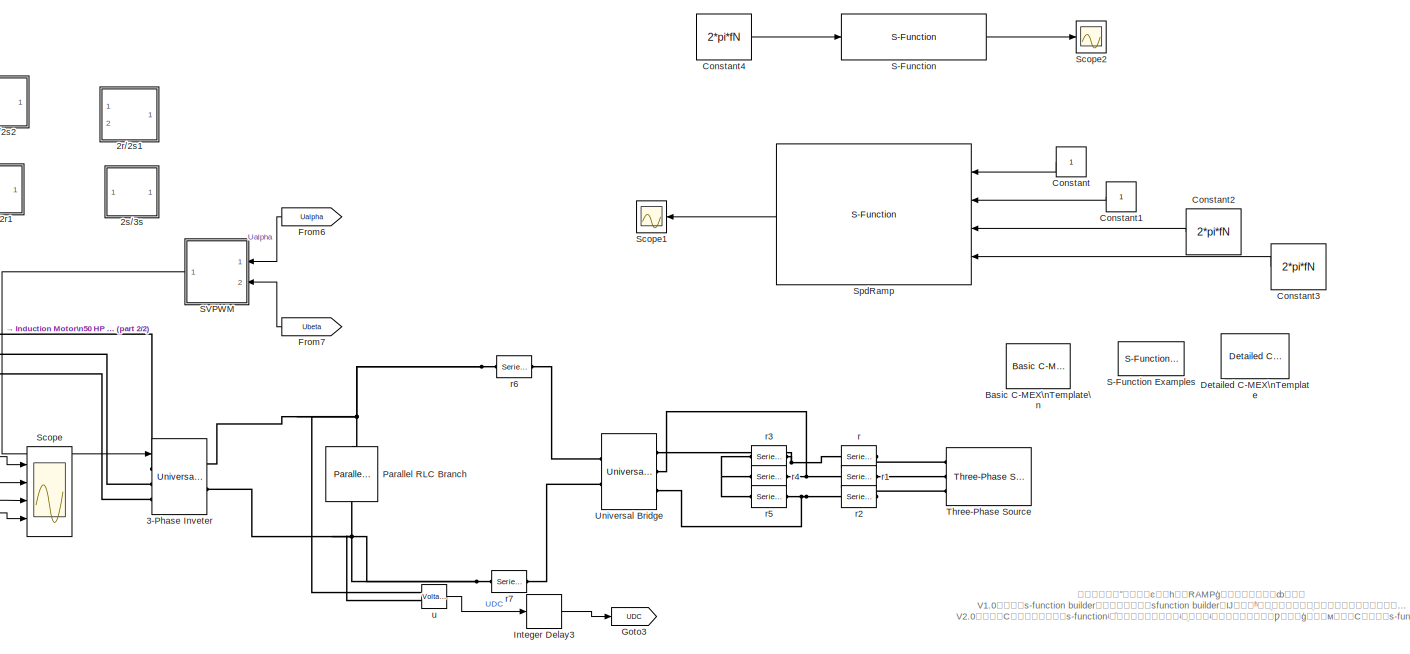
[diagram: root canvas - part 1/2, center side, full height]
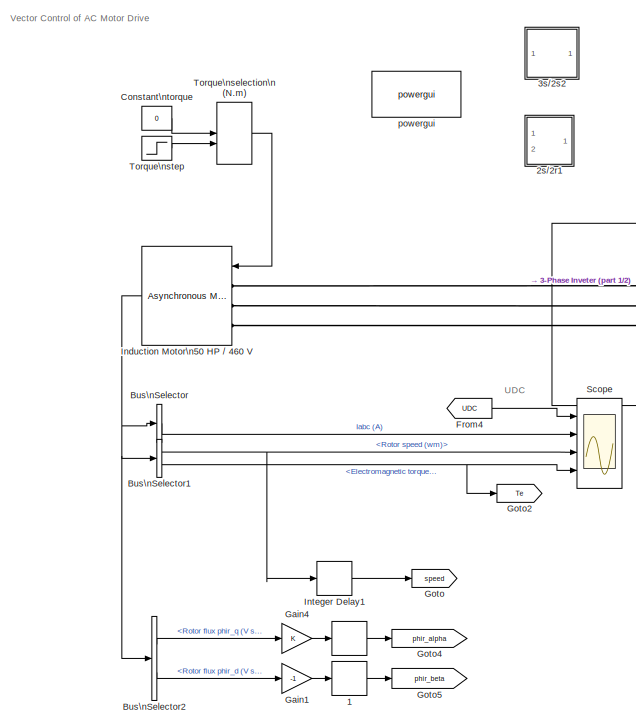
[diagram: root canvas - part 2/2, left side, full height]
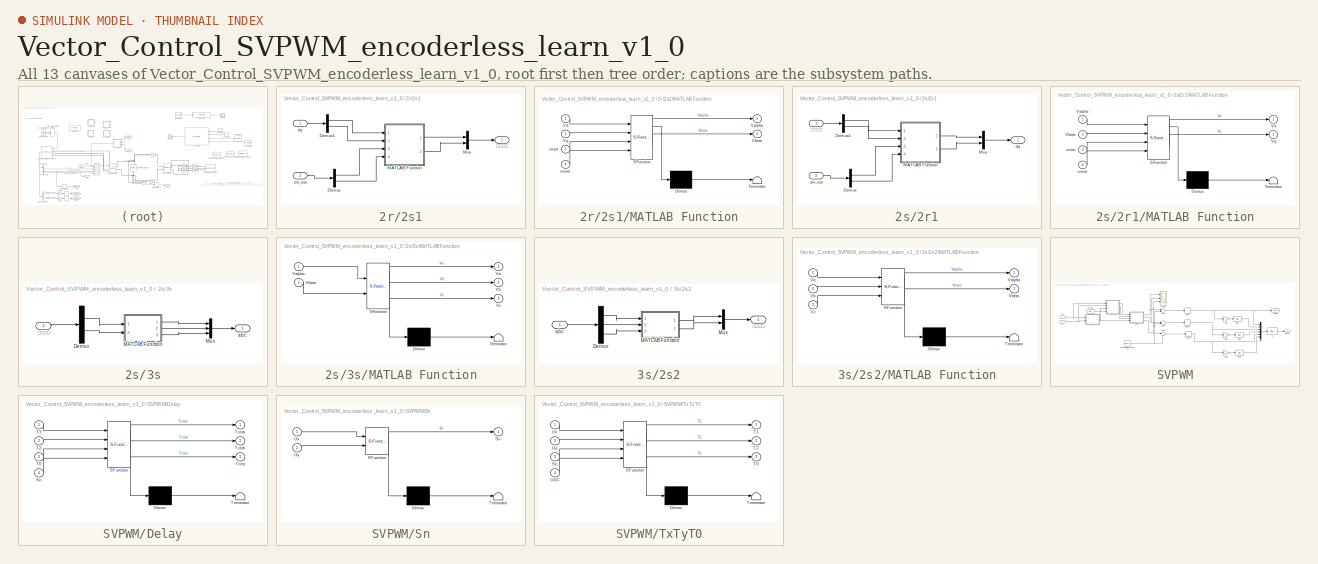
[diagram: thumbnail index - all 13 canvases of the model, root first then tree order]
MODEL Vector_Control_SVPWM_encoderless_learn_v1_0
KIND model
CONFIG InitFcn = Ts=1e-6;\n%resolute=100;\n\nrun('MotorParamInit_IM.m');\n\n\n
CONFIG PreLoadFcn = %MotorParamInit_IM.m;
BLOCK [Delay]  
  InitialCondition = 0
  InputPortMap = u0
  Ports = [1, 1]
  SID = 1007
  SampleTime = Ts
BLOCK [Delay]  1
  InitialCondition = 0
  InputPortMap = u0
  Ports = [1, 1]
  SID = 1008
  SampleTime = Ts
BLOCK [SubSystem] 2r//2s1
  Ports = [2, 1]
  RequestExecContextInheritance = off
  SID = 4603
BLOCK [Demux] 2r//2s1/Demux
  DisplayOption = bar
  Outputs = 2
  Ports = [1, 2]
  SID = 4606
BLOCK [Demux] 2r//2s1/Demux1
  DisplayOption = bar
  Outputs = 2
  Ports = [1, 2]
  SID = 4607
BLOCK [SubSystem] 2r//2s1/MATLAB Function
  ErrorFcn = Stateflow.Translate.translate
  PermitHierarchicalResolution = ExplicitOnly
  Ports = [4, 2]
  RequestExecContextInheritance = off
  SFBlockType = MATLAB Function
  SID = 4608
  TreatAsAtomicUnit = on
BLOCK [Demux] 2r//2s1/MATLAB Function/ Demux 
  Outputs = 1
  Ports = [1, 1]
  SID = 4608::32
BLOCK [S-Function] 2r//2s1/MATLAB Function/ SFunction 
  EnableBusSupport = on
  FunctionName = sf_sfun
  PortCounts = [4 3]
  Ports = [4, 3]
  SFcnIsStateOwnerBlock = off
  SFunctionDeploymentMode = off
  SID = 4608::31
  Tag = Stateflow S-Function 17
BLOCK [Terminator] 2r//2s1/MATLAB Function/ Terminator 
  SID = 4608::33
BLOCK [Outport] 2r//2s1/MATLAB Function/Valpha
  IconDisplay = Port number
  SID = 4608::29
BLOCK [Outport] 2r//2s1/MATLAB Function/Vbeta
  IconDisplay = Port number
  Port = 2
  SID = 4608::30
BLOCK [Inport] 2r//2s1/MATLAB Function/Vd
  IconDisplay = Port number
  SID = 4608::27
BLOCK [Inport] 2r//2s1/MATLAB Function/Vq
  IconDisplay = Port number
  Port = 2
  SID = 4608::28
BLOCK [Inport] 2r//2s1/MATLAB Function/coswt
  IconDisplay = Port number
  Port = 4
  SID = 4608::26
BLOCK [Inport] 2r//2s1/MATLAB Function/sinwt
  IconDisplay = Port number
  Port = 3
  SID = 4608::25
BLOCK [Mux] 2r//2s1/Mux
  DisplayOption = bar
  Inputs = 2
  Ports = [2, 1]
  SID = 4609
BLOCK [Inport] 2r//2s1/dq
  IconDisplay = Port number
  SID = 4604
BLOCK [Inport] 2r//2s1/sin_cos
  IconDisplay = Port number
  Port = 2
  SID = 4605
BLOCK [Outport] 2r//2s1/αβ
  IconDisplay = Port number
  SID = 4610
BLOCK [SubSystem] 2s//2r1
  Ports = [2, 1]
  RequestExecContextInheritance = off
  SID = 4611
BLOCK [Demux] 2s//2r1/Demux
  DisplayOption = bar
  Outputs = 2
  Ports = [1, 2]
  SID = 4614
BLOCK [Demux] 2s//2r1/Demux1
  DisplayOption = bar
  Outputs = 2
  Ports = [1, 2]
  SID = 4615
BLOCK [SubSystem] 2s//2r1/MATLAB Function
  ErrorFcn = Stateflow.Translate.translate
  PermitHierarchicalResolution = ExplicitOnly
  Ports = [4, 2]
  RequestExecContextInheritance = off
  SFBlockType = MATLAB Function
  SID = 4616
  TreatAsAtomicUnit = on
BLOCK [Demux] 2s//2r1/MATLAB Function/ Demux 
  Outputs = 1
  Ports = [1, 1]
  SID = 4616::28
BLOCK [S-Function] 2s//2r1/MATLAB Function/ SFunction 
  EnableBusSupport = on
  FunctionName = sf_sfun
  PortCounts = [4 3]
  Ports = [4, 3]
  SFcnIsStateOwnerBlock = off
  SFunctionDeploymentMode = off
  SID = 4616::27
  Tag = Stateflow S-Function 18
BLOCK [Terminator] 2s//2r1/MATLAB Function/ Terminator 
  SID = 4616::29
BLOCK [Inport] 2s//2r1/MATLAB Function/Valpha
  IconDisplay = Port number
  SID = 4616::1
BLOCK [Inport] 2s//2r1/MATLAB Function/Vbeta
  IconDisplay = Port number
  Port = 2
  SID = 4616::23
BLOCK [Outport] 2s//2r1/MATLAB Function/Vd
  IconDisplay = Port number
  SID = 4616::5
BLOCK [Outport] 2s//2r1/MATLAB Function/Vq
  IconDisplay = Port number
  Port = 2
  SID = 4616::24
BLOCK [Inport] 2s//2r1/MATLAB Function/coswt
  IconDisplay = Port number
  Port = 4
  SID = 4616::26
BLOCK [Inport] 2s//2r1/MATLAB Function/sinwt
  IconDisplay = Port number
  Port = 3
  SID = 4616::25
BLOCK [Mux] 2s//2r1/Mux
  DisplayOption = bar
  Inputs = 2
  Ports = [2, 1]
  SID = 4617
BLOCK [Outport] 2s//2r1/dq
  IconDisplay = Port number
  SID = 4618
BLOCK [Inport] 2s//2r1/sin_cos
  IconDisplay = Port number
  Port = 2
  SID = 4613
BLOCK [Inport] 2s//2r1/αβ
  IconDisplay = Port number
  SID = 4612
BLOCK [SubSystem] 2s//3s
  Ports = [1, 1]
  RequestExecContextInheritance = off
  SID = 4619
BLOCK [Demux] 2s//3s/Demux
  DisplayOption = bar
  Outputs = 2
  Ports = [1, 2]
  SID = 4621
BLOCK [SubSystem] 2s//3s/MATLAB Function
  ErrorFcn = Stateflow.Translate.translate
  PermitHierarchicalResolution = ExplicitOnly
  Ports = [2, 3]
  RequestExecContextInheritance = off
  SFBlockType = MATLAB Function
  SID = 4622
  TreatAsAtomicUnit = on
BLOCK [Demux] 2s//3s/MATLAB Function/ Demux 
  Outputs = 1
  Ports = [1, 1]
  SID = 4622::32
BLOCK [S-Function] 2s//3s/MATLAB Function/ SFunction 
  EnableBusSupport = on
  FunctionName = sf_sfun
  PortCounts = [2 4]
  Ports = [2, 4]
  SFcnIsStateOwnerBlock = off
  SFunctionDeploymentMode = off
  SID = 4622::31
  Tag = Stateflow S-Function 6
BLOCK [Terminator] 2s//3s/MATLAB Function/ Terminator 
  SID = 4622::33
BLOCK [Outport] 2s//3s/MATLAB Function/Va
  IconDisplay = Port number
  SID = 4622::28
BLOCK [Inport] 2s//3s/MATLAB Function/Valpha
  IconDisplay = Port number
  SID = 4622::26
BLOCK [Outport] 2s//3s/MATLAB Function/Vb
  IconDisplay = Port number
  Port = 2
  SID = 4622::29
BLOCK [Inport] 2s//3s/MATLAB Function/Vbeta
  IconDisplay = Port number
  Port = 2
  SID = 4622::27
BLOCK [Outport] 2s//3s/MATLAB Function/Vc
  IconDisplay = Port number
  Port = 3
  SID = 4622::30
BLOCK [Mux] 2s//3s/Mux
  DisplayOption = bar
  Inputs = 3
  Ports = [3, 1]
  SID = 4623
BLOCK [Outport] 2s//3s/abc
  IconDisplay = Port number
  SID = 4624
BLOCK [Inport] 2s//3s/αβ
  IconDisplay = Port number
  SID = 4620
BLOCK [Reference] 3-Phase Inveter  REF=powerlib/Power\nElectronics/Universal Bridge
  Arms = 3
  Device = IGBT / Diodes
  ForwardVoltage = 0
  ForwardVoltages = [1.1  0.75]
  GTOparameters = [ 10e-6 , 20e-6 ]
  IGBTparameters = [ 1e-6 , 2e-6 ]
  Lon = 0
  Measurements = None
  Measurements_2 = None
  Ports = [1, 0, 0, 0, 0, 3, 2]
  Ron = 1e-3
  SID = 924
  SnubberCapacitance = 1e-6
  SnubberResistance = 1e5
  SourceBlock = powerlib/Power\nElectronics/Universal Bridge
  SourceProductBaseCode = PS
  SourceProductName = Simscape Electrical
  SourceType = Universal Bridge
  converterType = Rectifier
BLOCK [SubSystem] 3s//2s2
  Ports = [1, 1]
  RequestExecContextInheritance = off
  SID = 4625
BLOCK [Demux] 3s//2s2/Demux
  DisplayOption = bar
  Outputs = 3
  Ports = [1, 3]
  SID = 4627
BLOCK [SubSystem] 3s//2s2/MATLAB Function
  ErrorFcn = Stateflow.Translate.translate
  PermitHierarchicalResolution = ExplicitOnly
  Ports = [3, 2]
  RequestExecContextInheritance = off
  SFBlockType = MATLAB Function
  SID = 4628
  TreatAsAtomicUnit = on
BLOCK [Demux] 3s//2s2/MATLAB Function/ Demux 
  Outputs = 1
  Ports = [1, 1]
  SID = 4628::27
BLOCK [S-Function] 3s//2s2/MATLAB Function/ SFunction 
  EnableBusSupport = on
  FunctionName = sf_sfun
  PortCounts = [3 3]
  Ports = [3, 3]
  SFcnIsStateOwnerBlock = off
  SFunctionDeploymentMode = off
  SID = 4628::26
  Tag = Stateflow S-Function 8
BLOCK [Terminator] 3s//2s2/MATLAB Function/ Terminator 
  SID = 4628::28
BLOCK [Inport] 3s//2s2/MATLAB Function/Va
  IconDisplay = Port number
  SID = 4628::1
BLOCK [Outport] 3s//2s2/MATLAB Function/Valpha
  IconDisplay = Port number
  SID = 4628::5
BLOCK [Inport] 3s//2s2/MATLAB Function/Vb
  IconDisplay = Port number
  Port = 2
  SID = 4628::23
BLOCK [Outport] 3s//2s2/MATLAB Function/Vbeta
  IconDisplay = Port number
  Port = 2
  SID = 4628::25
BLOCK [Inport] 3s//2s2/MATLAB Function/Vc
  IconDisplay = Port number
  Port = 3
  SID = 4628::24
BLOCK [Mux] 3s//2s2/Mux
  DisplayOption = bar
  Inputs = 2
  Ports = [2, 1]
  SID = 4629
BLOCK [Inport] 3s//2s2/abc
  IconDisplay = Port number
  SID = 4626
BLOCK [Outport] 3s//2s2/αβ
  IconDisplay = Port number
  SID = 4630
BLOCK [Reference] Basic C-MEX\nTemplate\n  REF=sfundemos/C-file\nS-functions/Basic C-MEX\nTemplate\n
  Ports = []
  SID = 4719
  SourceBlock = sfundemos/C-file\nS-functions/Basic C-MEX\nTemplate\n
  a = []
BLOCK [BusSelector] Bus\nSelector
  OutputAsBus = on
  OutputSignals = Stator measurements.Stator current is_a (A),Stator measurements.Stator current is_b (A),Stator measurements.Stator current is_c (A)
  Ports = [1, 1]
  SID = 1
BLOCK [BusSelector] Bus\nSelector1
  OutputAsBus = off
  OutputSignals = Mechanical.Rotor speed (wm),Mechanical.Electromagnetic torque Te (N*m)
  Ports = [1, 2]
  SID = 2
BLOCK [BusSelector] Bus\nSelector2
  OutputAsBus = off
  OutputSignals = Rotor measurements.Rotor flux phir_q (V s),Rotor measurements.Rotor flux phir_d (V s)
  Ports = [1, 2]
  SID = 963
BLOCK [Constant] Constant
  SID = 4713
  SampleTime = Ts
BLOCK [Constant] Constant1
  SID = 4714
BLOCK [Constant] Constant2
  SID = 4715
  Value = 2*pi*fN
BLOCK [Constant] Constant3
  SID = 4716
  Value = 2*pi*fN
BLOCK [Constant] Constant4
  SID = 4724
  Value = 2*pi*fN
BLOCK [Constant] Constant\ntorque
  SID = 4
  SampleTime = Ts
  Value = 0
BLOCK [Reference] Detailed C-MEX\nTemplate  REF=sfundemos/C-file\nS-functions/Detailed C-MEX\nTemplate
  Ports = []
  SID = 4720
  SourceBlock = sfundemos/C-file\nS-functions/Detailed C-MEX\nTemplate
  a = []
BLOCK [From] From4
  CloseFcn = tagdialog Close
  GotoTag = UDC
  SID = 927
  TagVisibility = global
BLOCK [From] From6
  CloseFcn = tagdialog Close
  GotoTag = Ualpha
  SID = 4655
BLOCK [From] From7
  CloseFcn = tagdialog Close
  GotoTag = Ubeta
  SID = 4656
BLOCK [Gain] Gain1
  Gain = -1
  OutDataTypeStr = Inherit: Inherit via internal rule
  ParamDataTypeStr = Inherit: Inherit via internal rule
  SID = 965
  SaturateOnIntegerOverflow = off
BLOCK [Gain] Gain4
  OutDataTypeStr = Inherit: Inherit via internal rule
  ParamDataTypeStr = Inherit: Inherit via internal rule
  SID = 964
  SaturateOnIntegerOverflow = off
BLOCK [Goto] Goto
  GotoTag = speed
  SID = 5
  TagVisibility = global
BLOCK [Goto] Goto2
  GotoTag = Te
  SID = 627
  TagVisibility = global
BLOCK [Goto] Goto3
  GotoTag = UDC
  SID = 926
  TagVisibility = global
BLOCK [Goto] Goto4
  GotoTag = phir_alpha
  SID = 966
  TagVisibility = global
BLOCK [Goto] Goto5
  GotoTag = phir_beta
  SID = 967
  TagVisibility = global
BLOCK [Reference] Induction Motor\n50 HP // 460 V  REF=powerlib/Machines/Asynchronous Machine\nSI Units
  AttributesFormatString = \\n
  Cage1 = [ 0.022 0.226/377]
  Cage2 = [ 0.022 0.226/377]
  InitialConditions = [0, 0 ,  0 , 0 , 0 , 0 , 0 , 0 ]
  IterativeDiscreteModel = Trapezoidal non iterative
  IterativeModel = Forward Euler
  Lm = Lm
  LoadFlowParameters = 0
  MeasurementBus = off
  Mechanical = [J 0 np]
  MechanicalLoad = Torque Tm
  NominalParameters = [PN, VN, fN]
  Pmec = 0
  PolePairs = 2
  Ports = [1, 1, 0, 0, 0, 3]
  PresetModel = No
  ReferenceFrame = Rotor
  Rotor = [Rr Llr]
  RotorType = Squirrel-cage
  SID = 8
  Saturation = [0.6883 0.9028 1.1135 1.2559 1.3970 1.7538 2.1504 2.4988 2.6956 3.0579 3.7375 4.2552 5.1653 5.8110 6.5024;74.1928 98.0992 121.6600 137.3550 152.7109 190.0931 228.8721 259.2975 274.7375 301.8574 342.5384 366.6332 399.5942 417.9914 434.8974]
  ShowDetailedParameters = on
  SimulateSaturation = off
  SourceBlock = powerlib/Machines/Asynchronous Machine\nSI Units
  SourceProductBaseCode = PS
  SourceProductName = Simscape Electrical
  SourceType = Asynchronous Machine
  Stator = [Rs Lls]
  TsBlock = Ts
  TsPowergui = 0
  Units = SI
BLOCK [Delay] Integer Delay1
  InitialCondition = 0
  InputPortMap = u0
  Ports = [1, 1]
  SID = 787
  SampleTime = Ts
BLOCK [Delay] Integer Delay3
  DelayLength = 1
  InitialCondition = 0
  InputPortMap = u0
  Ports = [1, 1]
  SID = 929
  SampleTime = Ts
BLOCK [Reference] Parallel RLC Branch  REF=powerlib/Elements/Parallel RLC Branch
  AttributesFormatString = \\n
  BranchType = RC
  Capacitance = 330e-6*5
  Inductance = 1e-3
  InitialCurrent = 0
  InitialVoltage = 530
  LConnTagsString = a
  Measurements = None
  Ports = [0, 0, 0, 0, 0, 1, 1]
  RConnTagsString = __new0
  Resistance = 330e3
  SID = 905
  SetiL0 = off
  Setx0 = on
  SourceBlock = powerlib/Elements/Parallel RLC Branch
  SourceProductBaseCode = PS
  SourceProductName = Simscape Electrical
  SourceType = Parallel RLC Branch
BLOCK [S-Function] S-Function
  EnableBusSupport = off
  FunctionName = basic_ramp
  Parameters = Tup Tdown NormalValue Tsample
  Ports = [1, 1]
  SFcnIsStateOwnerBlock = off
  SFunctionDeploymentMode = off
  SID = 4722
BLOCK [Reference] S-Function Examples  REF=simulink/User-Defined\nFunctions/S-Function Examples
  Ports = []
  SID = 4718
  SourceBlock = simulink/User-Defined\nFunctions/S-Function Examples
  SourceProductBaseCode = SL
  SourceProductName = Simulink
  SourceType = S-Function Examples
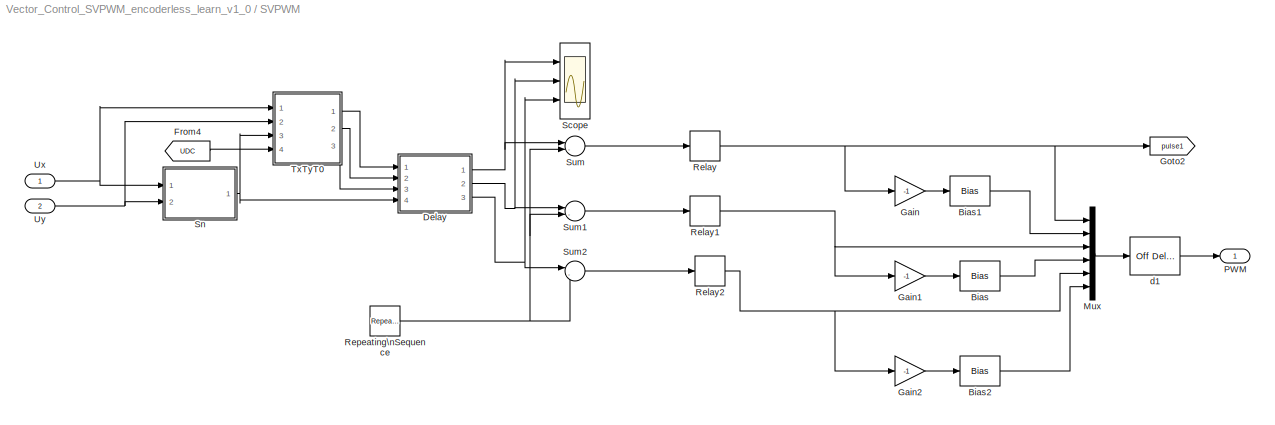
BLOCK [SubSystem] SVPWM
  Ports = [2, 1]
  RequestExecContextInheritance = off
  SID = 839
BLOCK [Bias] SVPWM/Bias
  Bias = 1
  SID = 842
  SaturateOnIntegerOverflow = off
BLOCK [Bias] SVPWM/Bias1
  Bias = 1
  SID = 843
  SaturateOnIntegerOverflow = off
BLOCK [Bias] SVPWM/Bias2
  Bias = 1
  SID = 844
  SaturateOnIntegerOverflow = off
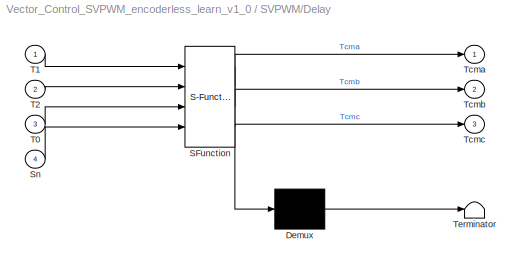
BLOCK [SubSystem] SVPWM/Delay
  ErrorFcn = Stateflow.Translate.translate
  PermitHierarchicalResolution = ExplicitOnly
  Ports = [4, 3]
  RequestExecContextInheritance = off
  SFBlockType = MATLAB Function
  SID = 845
  TreatAsAtomicUnit = on
BLOCK [Demux] SVPWM/Delay/ Demux 
  Outputs = 1
  Ports = [1, 1]
  SID = 845::20
BLOCK [S-Function] SVPWM/Delay/ SFunction 
  EnableBusSupport = on
  FunctionName = sf_sfun
  PortCounts = [4 4]
  Ports = [4, 4]
  SFcnIsStateOwnerBlock = off
  SFunctionDeploymentMode = off
  SID = 845::19
  Tag = Stateflow S-Function 4
BLOCK [Terminator] SVPWM/Delay/ Terminator 
  SID = 845::21
BLOCK [Inport] SVPWM/Delay/Sn
  IconDisplay = Port number
  Port = 4
  SID = 845::4
BLOCK [Inport] SVPWM/Delay/T0
  IconDisplay = Port number
  Port = 3
  SID = 845::3
BLOCK [Inport] SVPWM/Delay/T1
  IconDisplay = Port number
  SID = 845::1
BLOCK [Inport] SVPWM/Delay/T2
  IconDisplay = Port number
  Port = 2
  SID = 845::2
BLOCK [Outport] SVPWM/Delay/Tcma
  IconDisplay = Port number
  SID = 845::8
BLOCK [Outport] SVPWM/Delay/Tcmb
  IconDisplay = Port number
  Port = 2
  SID = 845::9
BLOCK [Outport] SVPWM/Delay/Tcmc
  IconDisplay = Port number
  Port = 3
  SID = 845::10
BLOCK [From] SVPWM/From4
  CloseFcn = tagdialog Close
  GotoTag = UDC
  SID = 928
  TagVisibility = global
BLOCK [Gain] SVPWM/Gain
  Gain = -1
  OutDataTypeStr = Inherit: Inherit via internal rule
  ParamDataTypeStr = Inherit: Inherit via internal rule
  SID = 846
  SaturateOnIntegerOverflow = off
BLOCK [Gain] SVPWM/Gain1
  Gain = -1
  OutDataTypeStr = Inherit: Inherit via internal rule
  ParamDataTypeStr = Inherit: Inherit via internal rule
  SID = 847
  SaturateOnIntegerOverflow = off
BLOCK [Gain] SVPWM/Gain2
  Gain = -1
  OutDataTypeStr = Inherit: Inherit via internal rule
  ParamDataTypeStr = Inherit: Inherit via internal rule
  SID = 848
  SaturateOnIntegerOverflow = off
BLOCK [Goto] SVPWM/Goto2
  GotoTag = pulse1
  SID = 956
  TagVisibility = global
BLOCK [Mux] SVPWM/Mux
  DisplayOption = bar
  Inputs = 6
  Ports = [6, 1]
  SID = 849
BLOCK [Outport] SVPWM/PWM
  IconDisplay = Port number
  SID = 860
BLOCK [Relay] SVPWM/Relay
  OffSwitchValue = 0
  OnSwitchValue = 0
  SID = 851
BLOCK [Relay] SVPWM/Relay1
  OffSwitchValue = 0
  OnSwitchValue = 0
  SID = 852
BLOCK [Relay] SVPWM/Relay2
  OffSwitchValue = 0
  OnSwitchValue = 0
  SID = 853
BLOCK [Reference] SVPWM/Repeating\nSequence  REF=simulink/Sources/Repeating\nSequence
  Ports = [0, 1]
  SID = 854
  SourceBlock = simulink/Sources/Repeating\nSequence
  SourceProductBaseCode = SL
  SourceProductName = Simulink
  SourceType = Repeating table
  rep_seq_t = [0 1/5000/2 1/5000]
  rep_seq_y = [0 1/5000/2 0]
BLOCK [Scope] SVPWM/Scope
  Floating = off
  NumInputPorts = 3
  Ports = [3]
  SID = 4595
  ScopeSpecificationString = C++SS(StrPVP('Location','[1, 60, 1921, 1019]'),StrPVP('Open','off'),StrPVP('ZoomMode','xonly'),MxPVP('AxesTitles',54,'struct(''axes1'',''%<SignalLabel>'',''axes2'',''%<SignalLabel>'',''axes3'',''%<SignalLabel>'')'),MxPVP('ScopeGraphics',57,'struct(''FigureColor'',''[0.5 0.5 0.5]'',''AxesColor'',''[0 0 0]'',''AxesTickColor'',''[1 1 1]'',''LineColors'',''[1 1 0;1 0 1;0 1 1;1 0 0;0 1 0;0 0 1]'',''Lin...<+406ch>
BLOCK [SubSystem] SVPWM/Sn
  ErrorFcn = Stateflow.Translate.translate
  PermitHierarchicalResolution = ExplicitOnly
  Ports = [2, 1]
  RequestExecContextInheritance = off
  SFBlockType = MATLAB Function
  SID = 855
  TreatAsAtomicUnit = on
BLOCK [Demux] SVPWM/Sn/ Demux 
  Outputs = 1
  Ports = [1, 1]
  SID = 855::16
BLOCK [S-Function] SVPWM/Sn/ SFunction 
  EnableBusSupport = on
  FunctionName = sf_sfun
  PortCounts = [2 2]
  Ports = [2, 2]
  SFcnIsStateOwnerBlock = off
  SFunctionDeploymentMode = off
  SID = 855::15
  Tag = Stateflow S-Function 1
BLOCK [Terminator] SVPWM/Sn/ Terminator 
  SID = 855::17
BLOCK [Outport] SVPWM/Sn/Sn
  IconDisplay = Port number
  SID = 855::6
BLOCK [Inport] SVPWM/Sn/Ux
  IconDisplay = Port number
  SID = 855::1
BLOCK [Inport] SVPWM/Sn/Uy
  IconDisplay = Port number
  Port = 2
  SID = 855::2
BLOCK [Sum] SVPWM/Sum
  IconShape = round
  InputSameDT = off
  Inputs = |-+
  OutDataTypeStr = Inherit: Inherit via internal rule
  Ports = [2, 1]
  SID = 856
  SaturateOnIntegerOverflow = off
BLOCK [Sum] SVPWM/Sum1
  IconShape = round
  InputSameDT = off
  Inputs = |-+
  OutDataTypeStr = Inherit: Inherit via internal rule
  Ports = [2, 1]
  SID = 857
  SaturateOnIntegerOverflow = off
BLOCK [Sum] SVPWM/Sum2
  IconShape = round
  InputSameDT = off
  Inputs = |-+
  OutDataTypeStr = Inherit: Inherit via internal rule
  Ports = [2, 1]
  SID = 858
  SaturateOnIntegerOverflow = off
BLOCK [SubSystem] SVPWM/TxTyT0
  ErrorFcn = Stateflow.Translate.translate
  PermitHierarchicalResolution = ExplicitOnly
  Ports = [4, 3]
  RequestExecContextInheritance = off
  SFBlockType = MATLAB Function
  SID = 859
  TreatAsAtomicUnit = on
BLOCK [Demux] SVPWM/TxTyT0/ Demux 
  Outputs = 1
  Ports = [1, 1]
  SID = 859::20
BLOCK [S-Function] SVPWM/TxTyT0/ SFunction 
  EnableBusSupport = on
  FunctionName = sf_sfun
  PortCounts = [4 4]
  Ports = [4, 4]
  SFcnIsStateOwnerBlock = off
  SFunctionDeploymentMode = off
  SID = 859::19
  Tag = Stateflow S-Function 3
BLOCK [Terminator] SVPWM/TxTyT0/ Terminator 
  SID = 859::21
BLOCK [Inport] SVPWM/TxTyT0/Sn
  IconDisplay = Port number
  Port = 3
  SID = 859::3
BLOCK [Outport] SVPWM/TxTyT0/T0
  IconDisplay = Port number
  Port = 3
  SID = 859::9
BLOCK [Outport] SVPWM/TxTyT0/T1
  IconDisplay = Port number
  SID = 859::7
BLOCK [Outport] SVPWM/TxTyT0/T2
  IconDisplay = Port number
  Port = 2
  SID = 859::8
BLOCK [Inport] SVPWM/TxTyT0/UDC
  IconDisplay = Port number
  Port = 4
  SID = 859::14
BLOCK [Inport] SVPWM/TxTyT0/Ux
  IconDisplay = Port number
  SID = 859::1
BLOCK [Inport] SVPWM/TxTyT0/Uy
  IconDisplay = Port number
  Port = 2
  SID = 859::2
BLOCK [Inport] SVPWM/Ux
  IconDisplay = Port number
  SID = 840
BLOCK [Inport] SVPWM/Uy
  IconDisplay = Port number
  Port = 2
  SID = 841
BLOCK [Reference] SVPWM/d1  REF=powerlib_extras/Discrete \nControl Blocks/Discrete\nOn//Off Delay
  Ports = [1, 1]
  SID = 938
  SourceBlock = powerlib_extras/Discrete \nControl Blocks/Discrete\nOn//Off Delay
  SourceProductBaseCode = PS
  SourceProductName = Simscape Electrical
  SourceType = Discrete On/Off Delay
  Ts = Ts
  delay = DT
  ic = 0
  type_delay = On delay
BLOCK [Scope] Scope
  Floating = off
  NumInputPorts = 4
  Ports = [4]
  SID = 11
  ScopeSpecificationString = C++SS(StrPVP('Location','[5, 34, 1925, 993]'),StrPVP('Open','off'),StrPVP('ZoomMode','yonly'),MxPVP('AxesTitles',54,'struct(''axes1'',''%<SignalLabel>'',''axes2'',''%<SignalLabel>'',''axes3'',''%<SignalLabel>'',''axes4'',''%<SignalLabel>'')'),MxPVP('ScopeGraphics',57,'struct(''FigureColor'',''[0.5 0.5 0.5]'',''AxesColor'',''[0 0 0]'',''AxesTickColor'',''[1 1 1]'',''LineColors'',''[1 1 0;1 0 1;0 1 ...<+467ch>
BLOCK [Scope] Scope1
  Floating = off
  NumInputPorts = 1
  Ports = [1]
  SID = 4717
  ScopeSpecificationString = Simulink.scopes.TimeScopeBlockCfg('CurrentConfiguration', extmgr.ConfigurationSet(extmgr.Configuration('Core','General UI',true),extmgr.Configuration('Core','Source UI',true),extmgr.Configuration('Sources','WiredSimulink',true,'DataLoggingVariableName','ScopeData1'),extmgr.Configuration('Visuals','Time Domain',true,'SerializedDisplays',{struct('MinYLimReal','-0.06676','MaxYLimReal','0.60083','YLab...<+1441ch>
BLOCK [Scope] Scope2
  Floating = off
  NumInputPorts = 1
  Ports = [1]
  SID = 4723
  ScopeSpecificationString = Simulink.scopes.TimeScopeBlockCfg('CurrentConfiguration', extmgr.ConfigurationSet(extmgr.Configuration('Core','General UI',true,'FigureColor',[1 1 1]),extmgr.Configuration('Core','Source UI',true),extmgr.Configuration('Sources','WiredSimulink',true,'DataLoggingVariableName','ScopeData2'),extmgr.Configuration('Visuals','Time Domain',true,'SerializedDisplays',{struct('MinYLimReal','-39.26955','MaxYL...<+1660ch>
BLOCK [S-Function] SpdRamp
  CopyFcn = set_param(gcbh,'LinkStatus','none')
  EnableBusSupport = off
  FunctionName = BasicRamp
  InitFcn = try, set_param(gcb,'FunctionName','BasicRamp'), end
  OpenFcn = sfunctionwizard(gcbh)
  Ports = [4, 1]
  PreSaveFcn = try, set_param(gcb,'FunctionName','BasicRamp'), end
  SFcnIsStateOwnerBlock = off
  SFunctionDeploymentMode = off
  SFunctionModules = BasicRamp_wrapper
  SID = 4712
  WizardData = DataTag0
BLOCK [Reference] Three-Phase Source  REF=powerlib/Electrical\nSources/Three-Phase Source
  BaseVoltage = 380
  BusType = swing
  Frequency = 50
  Inductance = 1e-6
  InternalConnection = Yg
  NonIdealSource = on
  PhaseAngle = 0
  PhaseAngles_phases = [0 -120 +120]
  Ports = [0, 0, 0, 0, 0, 0, 3]
  Pref = 0
  Prefabc = [10e3, 10e3, 10e3]
  Qmax = inf
  Qmin = -inf
  Qref = 0
  Qrefabc = [0, 0, 0]
  Resistance = 1e-5
  SID = 908
  ShortCircuitLevel = 1e8
  SourceBlock = powerlib/Electrical\nSources/Three-Phase Source
  SourceProductBaseCode = PS
  SourceProductName = Simscape Electrical
  SourceType = Three-Phase Source
  SpecifyImpedance = off
  Voltage = 380
  VoltagePhases = off
  Voltage_phases = [25e3 25e3 25e3]/sqrt(3)
  XRratio = 0.1
BLOCK [ManualSwitch] Torque\nselection\n(N.m)
  SID = 13
BLOCK [Step] Torque\nstep
  After = 5
  SID = 14
  SampleTime = Ts
BLOCK [Reference] Universal Bridge  REF=powerlib/Power\nElectronics/Universal Bridge
  Arms = 3
  Device = Diodes
  ForwardVoltage = 0.7
  ForwardVoltages = [  0  0  ]
  GTOparameters = [ 10e-6 , 20e-6 ]
  IGBTparameters = [ 1e-6 , 2e-6 ]
  Lon = 20e-9
  Measurements = None
  Measurements_2 = None
  Ports = [0, 0, 0, 0, 0, 3, 2]
  Ron = 1e-3
  SID = 911
  SnubberCapacitance = 1e-6
  SnubberResistance = 1e5
  SourceBlock = powerlib/Power\nElectronics/Universal Bridge
  SourceProductBaseCode = PS
  SourceProductName = Simscape Electrical
  SourceType = Universal Bridge
  converterType = Rectifier
BLOCK [Reference] powergui  REF=powerlib/powergui
  AutomaticDiscreteSolvers = off
  ContinueOnMaxIteration = off
  CurrentSourceSwitches = off
  DisableRonSwitches = off
  DisableSnubberDevices = off
  DisableVfSwitches = off
  DisplayEquations = off
  DisplayStyle = off
  EnableUseOfTLC = off
  ErrMax = 1e-4
  ExternalGateDelay = off
  Frange = [0:2:500]
  FreqAxis = off
  FunctionMessages = off
  HookPort = off
  Interpol = off
  Iterations = 50
  MaxFrequency = 1000
  NonlinearTolerance = 1e-4
  Pbase = 100e6
  Ports = []
  Priority = 2
  ResistiveCurrentMeasurement = off
  RestoreLinks = warning
  RmsSteady = 1
  SID = 115
  SPID = off
  SampleTime = Ts
  ShowGrid = off
  SolverType = Tustin
  SourceBlock = powerlib/powergui
  SourceProductBaseCode = PS
  SourceProductName = Simscape Electrical
  SourceType = PSB option menu block
  StartTime = 0.0
  SwTol = 0
  Ts = 0
  UnitsV = kV
  UnitsW = MW
  Xlog = off
  Ylog = off
  ZoomFFT = on
  buscounter = 0
  cycles = 1
  display = off
  echomessages = off
  frequency = 60
  frequencyindice = 0
  frequencyindicesteady = 1
  fundamental = 60
  methode = off
  nMaxIteration = 100
  save = off
  structure = 0
  variable = ZData
  x0status = blocks
BLOCK [Reference] r  REF=powerlib/Elements/Series RLC Branch
  BranchType = L
  Capacitance = 1e-6
  Inductance = 0.1e-3
  InitialCurrent = 0
  InitialVoltage = 0
  LConnTagsString = __new0
  Measurements = None
  Ports = [0, 0, 0, 0, 0, 1, 1]
  RConnTagsString = __new0
  Resistance = 8e-6
  SID = 915
  SetiL0 = off
  Setx0 = off
  SourceBlock = powerlib/Elements/Series RLC Branch
  SourceProductBaseCode = PS
  SourceProductName = Simscape Electrical
  SourceType = Series RLC Branch
BLOCK [Reference] r1  REF=powerlib/Elements/Series RLC Branch
  BranchType = L
  Capacitance = 1e-6
  Inductance = 0.1e-3
  InitialCurrent = 0
  InitialVoltage = 0
  LConnTagsString = __new0
  Measurements = None
  Ports = [0, 0, 0, 0, 0, 1, 1]
  RConnTagsString = __new0
  Resistance = 8e-6
  SID = 916
  SetiL0 = off
  Setx0 = off
  SourceBlock = powerlib/Elements/Series RLC Branch
  SourceProductBaseCode = PS
  SourceProductName = Simscape Electrical
  SourceType = Series RLC Branch
BLOCK [Reference] r2  REF=powerlib/Elements/Series RLC Branch
  BranchType = L
  Capacitance = 1e-6
  Inductance = 0.1e-3
  InitialCurrent = 0
  InitialVoltage = 0
  LConnTagsString = __new0
  Measurements = None
  Ports = [0, 0, 0, 0, 0, 1, 1]
  RConnTagsString = __new0
  Resistance = 8e-6
  SID = 917
  SetiL0 = off
  Setx0 = off
  SourceBlock = powerlib/Elements/Series RLC Branch
  SourceProductBaseCode = PS
  SourceProductName = Simscape Electrical
  SourceType = Series RLC Branch
BLOCK [Reference] r3  REF=powerlib/Elements/Series RLC Branch
  BranchType = RC
  Capacitance = 1e-6
  Inductance = 1e-3
  InitialCurrent = 0
  InitialVoltage = 0
  LConnTagsString = __new0
  Measurements = None
  Ports = [0, 0, 0, 0, 0, 1, 1]
  RConnTagsString = __new0
  Resistance = 0.01
  SID = 918
  SetiL0 = off
  Setx0 = off
  SourceBlock = powerlib/Elements/Series RLC Branch
  SourceProductBaseCode = PS
  SourceProductName = Simscape Electrical
  SourceType = Series RLC Branch
BLOCK [Reference] r4  REF=powerlib/Elements/Series RLC Branch
  BranchType = RC
  Capacitance = 1e-6
  Inductance = 1e-3
  InitialCurrent = 0
  InitialVoltage = 0
  LConnTagsString = __new0
  Measurements = None
  Ports = [0, 0, 0, 0, 0, 1, 1]
  RConnTagsString = __new0
  Resistance = 0.01
  SID = 919
  SetiL0 = off
  Setx0 = off
  SourceBlock = powerlib/Elements/Series RLC Branch
  SourceProductBaseCode = PS
  SourceProductName = Simscape Electrical
  SourceType = Series RLC Branch
BLOCK [Reference] r5  REF=powerlib/Elements/Series RLC Branch
  BranchType = RC
  Capacitance = 1e-6
  Inductance = 1e-3
  InitialCurrent = 0
  InitialVoltage = 0
  LConnTagsString = __new0
  Measurements = None
  Ports = [0, 0, 0, 0, 0, 1, 1]
  RConnTagsString = __new0
  Resistance = 0.01
  SID = 920
  SetiL0 = off
  Setx0 = off
  SourceBlock = powerlib/Elements/Series RLC Branch
  SourceProductBaseCode = PS
  SourceProductName = Simscape Electrical
  SourceType = Series RLC Branch
BLOCK [Reference] r6  REF=powerlib/Elements/Series RLC Branch
  BranchType = RL
  Capacitance = 1e-6
  Inductance = 1e-6
  InitialCurrent = 0
  InitialVoltage = 0
  LConnTagsString = __new0
  Measurements = None
  Ports = [0, 0, 0, 0, 0, 1, 1]
  RConnTagsString = __new0
  Resistance = 1e-4
  SID = 921
  SetiL0 = off
  Setx0 = off
  SourceBlock = powerlib/Elements/Series RLC Branch
  SourceProductBaseCode = PS
  SourceProductName = Simscape Electrical
  SourceType = Series RLC Branch
BLOCK [Reference] r7  REF=powerlib/Elements/Series RLC Branch
  BranchType = RL
  Capacitance = 1e-6
  Inductance = 1e-6
  InitialCurrent = 0
  InitialVoltage = 0
  LConnTagsString = __new0
  Measurements = None
  Ports = [0, 0, 0, 0, 0, 1, 1]
  RConnTagsString = __new0
  Resistance = 1e-4
  SID = 922
  SetiL0 = off
  Setx0 = off
  SourceBlock = powerlib/Elements/Series RLC Branch
  SourceProductBaseCode = PS
  SourceProductName = Simscape Electrical
  SourceType = Series RLC Branch
BLOCK [Reference] u  REF=powerlib/Measurements/Voltage Measurement
  AttributesFormatString = \\n
  OutputType = Magnitude
  PSBequivalent = 0
  PhasorSimulation = off
  Ports = [0, 1, 0, 0, 0, 2]
  SID = 923
  SourceBlock = powerlib/Measurements/Voltage Measurement
  SourceProductBaseCode = PS
  SourceProductName = Simscape Electrical
  SourceType = Voltage Measurement
  Tag = PoWeRsYsTeMmEaSuReMeNt
ANNOTATION (root): UDC
ANNOTATION (root): Vector Control of AC Motor Drive
ANNOTATION (root): 开发日志，试图搭建一个RAMP模块用于速度给定\nV1.0版：用s-function builder搭建，但是sfunction builder的采样时间只能送数值，不能送变量，导致灵活性不高。\nV2.0版：用CÓïÑÔ±àÒëµÄs-function实现。最终结果是实现倒是实现了，但是仿真模型中加入CÓïÑÔs-function后，仿真速度变慢了很多，难以接受。
LINE  1:1 -> Goto5:1
LINE  :1 -> Goto4:1
LINE 2r//2s1/Demux1:1 -> 2r//2s1/MATLAB Function:1
LINE 2r//2s1/Demux1:2 -> 2r//2s1/MATLAB Function:2
LINE 2r//2s1/Demux:1 -> 2r//2s1/MATLAB Function:3
LINE 2r//2s1/Demux:2 -> 2r//2s1/MATLAB Function:4
LINE 2r//2s1/MATLAB Function/ Demux :1 -> 2r//2s1/MATLAB Function/ Terminator :1
LINE 2r//2s1/MATLAB Function/ SFunction :1 -> 2r//2s1/MATLAB Function/ Demux :1
LINE 2r//2s1/MATLAB Function/ SFunction :2 -> 2r//2s1/MATLAB Function/Valpha:1
LINE 2r//2s1/MATLAB Function/ SFunction :3 -> 2r//2s1/MATLAB Function/Vbeta:1
LINE 2r//2s1/MATLAB Function/Vd:1 -> 2r//2s1/MATLAB Function/ SFunction :1
LINE 2r//2s1/MATLAB Function/Vq:1 -> 2r//2s1/MATLAB Function/ SFunction :2
LINE 2r//2s1/MATLAB Function/coswt:1 -> 2r//2s1/MATLAB Function/ SFunction :4
LINE 2r//2s1/MATLAB Function/sinwt:1 -> 2r//2s1/MATLAB Function/ SFunction :3
LINE 2r//2s1/MATLAB Function:1 -> 2r//2s1/Mux:1
LINE 2r//2s1/MATLAB Function:2 -> 2r//2s1/Mux:2
LINE 2r//2s1/Mux:1 -> 2r//2s1/αβ:1
LINE 2r//2s1/dq:1 -> 2r//2s1/Demux1:1
LINE 2r//2s1/sin_cos:1 -> 2r//2s1/Demux:1
LINE 2s//2r1/Demux1:1 -> 2s//2r1/MATLAB Function:1
LINE 2s//2r1/Demux1:2 -> 2s//2r1/MATLAB Function:2
LINE 2s//2r1/Demux:1 -> 2s//2r1/MATLAB Function:3
LINE 2s//2r1/Demux:2 -> 2s//2r1/MATLAB Function:4
LINE 2s//2r1/MATLAB Function/ Demux :1 -> 2s//2r1/MATLAB Function/ Terminator :1
LINE 2s//2r1/MATLAB Function/ SFunction :1 -> 2s//2r1/MATLAB Function/ Demux :1
LINE 2s//2r1/MATLAB Function/ SFunction :2 -> 2s//2r1/MATLAB Function/Vd:1
LINE 2s//2r1/MATLAB Function/ SFunction :3 -> 2s//2r1/MATLAB Function/Vq:1
LINE 2s//2r1/MATLAB Function/Valpha:1 -> 2s//2r1/MATLAB Function/ SFunction :1
LINE 2s//2r1/MATLAB Function/Vbeta:1 -> 2s//2r1/MATLAB Function/ SFunction :2
LINE 2s//2r1/MATLAB Function/coswt:1 -> 2s//2r1/MATLAB Function/ SFunction :4
LINE 2s//2r1/MATLAB Function/sinwt:1 -> 2s//2r1/MATLAB Function/ SFunction :3
LINE 2s//2r1/MATLAB Function:1 -> 2s//2r1/Mux:1
LINE 2s//2r1/MATLAB Function:2 -> 2s//2r1/Mux:2
LINE 2s//2r1/Mux:1 -> 2s//2r1/dq:1
LINE 2s//2r1/sin_cos:1 -> 2s//2r1/Demux:1
LINE 2s//2r1/αβ:1 -> 2s//2r1/Demux1:1
LINE 2s//3s/Demux:1 -> 2s//3s/MATLAB Function:1
LINE 2s//3s/Demux:2 -> 2s//3s/MATLAB Function:2
LINE 2s//3s/MATLAB Function/ Demux :1 -> 2s//3s/MATLAB Function/ Terminator :1
LINE 2s//3s/MATLAB Function/ SFunction :1 -> 2s//3s/MATLAB Function/ Demux :1
LINE 2s//3s/MATLAB Function/ SFunction :2 -> 2s//3s/MATLAB Function/Va:1
LINE 2s//3s/MATLAB Function/ SFunction :3 -> 2s//3s/MATLAB Function/Vb:1
LINE 2s//3s/MATLAB Function/ SFunction :4 -> 2s//3s/MATLAB Function/Vc:1
LINE 2s//3s/MATLAB Function/Valpha:1 -> 2s//3s/MATLAB Function/ SFunction :1
LINE 2s//3s/MATLAB Function/Vbeta:1 -> 2s//3s/MATLAB Function/ SFunction :2
LINE 2s//3s/MATLAB Function:1 -> 2s//3s/Mux:1
LINE 2s//3s/MATLAB Function:2 -> 2s//3s/Mux:2
LINE 2s//3s/MATLAB Function:3 -> 2s//3s/Mux:3
LINE 2s//3s/Mux:1 -> 2s//3s/abc:1
LINE 2s//3s/αβ:1 -> 2s//3s/Demux:1
LINE 3s//2s2/Demux:1 -> 3s//2s2/MATLAB Function:1
LINE 3s//2s2/Demux:2 -> 3s//2s2/MATLAB Function:2
LINE 3s//2s2/Demux:3 -> 3s//2s2/MATLAB Function:3
LINE 3s//2s2/MATLAB Function/ Demux :1 -> 3s//2s2/MATLAB Function/ Terminator :1
LINE 3s//2s2/MATLAB Function/ SFunction :1 -> 3s//2s2/MATLAB Function/ Demux :1
LINE 3s//2s2/MATLAB Function/ SFunction :2 -> 3s//2s2/MATLAB Function/Valpha:1
LINE 3s//2s2/MATLAB Function/ SFunction :3 -> 3s//2s2/MATLAB Function/Vbeta:1
LINE 3s//2s2/MATLAB Function/Va:1 -> 3s//2s2/MATLAB Function/ SFunction :1
LINE 3s//2s2/MATLAB Function/Vb:1 -> 3s//2s2/MATLAB Function/ SFunction :2
LINE 3s//2s2/MATLAB Function/Vc:1 -> 3s//2s2/MATLAB Function/ SFunction :3
LINE 3s//2s2/MATLAB Function:1 -> 3s//2s2/Mux:1
LINE 3s//2s2/MATLAB Function:2 -> 3s//2s2/Mux:2
LINE 3s//2s2/Mux:1 -> 3s//2s2/αβ:1
LINE 3s//2s2/abc:1 -> 3s//2s2/Demux:1
NET Bus\nSelector1:1 -> Integer Delay1:1, Scope:3
NET Bus\nSelector1:2 -> Goto2:1, Scope:4
LINE Bus\nSelector2:1 -> Gain4:1
LINE Bus\nSelector2:2 -> Gain1:1
LINE Bus\nSelector:1 -> Scope:2
LINE Constant1:1 -> SpdRamp:2
LINE Constant2:1 -> SpdRamp:3
LINE Constant3:1 -> SpdRamp:4
LINE Constant4:1 -> S-Function:1
LINE Constant:1 -> SpdRamp:1
LINE Constant\ntorque:1 -> Torque\nselection\n(N.m):1
LINE From4:1 -> Scope:1
LINE From6:1 -> SVPWM:1
LINE From7:1 -> SVPWM:2
LINE Gain1:1 ->  1:1
LINE Gain4:1 ->  :1
NET Induction Motor\n50 HP // 460 V:1 -> Bus\nSelector1:1, Bus\nSelector2:1, Bus\nSelector:1
LINE Integer Delay1:1 -> Goto:1
LINE Integer Delay3:1 -> Goto3:1
LINE S-Function:1 -> Scope2:1
LINE SVPWM/Bias1:1 -> SVPWM/Mux:2
LINE SVPWM/Bias2:1 -> SVPWM/Mux:6
LINE SVPWM/Bias:1 -> SVPWM/Mux:4
LINE SVPWM/Delay/ Demux :1 -> SVPWM/Delay/ Terminator :1
LINE SVPWM/Delay/ SFunction :1 -> SVPWM/Delay/ Demux :1
LINE SVPWM/Delay/ SFunction :2 -> SVPWM/Delay/Tcma:1
LINE SVPWM/Delay/ SFunction :3 -> SVPWM/Delay/Tcmb:1
LINE SVPWM/Delay/ SFunction :4 -> SVPWM/Delay/Tcmc:1
LINE SVPWM/Delay/Sn:1 -> SVPWM/Delay/ SFunction :4
LINE SVPWM/Delay/T0:1 -> SVPWM/Delay/ SFunction :3
LINE SVPWM/Delay/T1:1 -> SVPWM/Delay/ SFunction :1
LINE SVPWM/Delay/T2:1 -> SVPWM/Delay/ SFunction :2
NET SVPWM/Delay:1 -> SVPWM/Scope:1, SVPWM/Sum:1
NET SVPWM/Delay:2 -> SVPWM/Scope:2, SVPWM/Sum1:1
NET SVPWM/Delay:3 -> SVPWM/Scope:3, SVPWM/Sum2:1
LINE SVPWM/From4:1 -> SVPWM/TxTyT0:4
LINE SVPWM/Gain1:1 -> SVPWM/Bias:1
LINE SVPWM/Gain2:1 -> SVPWM/Bias2:1
LINE SVPWM/Gain:1 -> SVPWM/Bias1:1
LINE SVPWM/Mux:1 -> SVPWM/d1:1
NET SVPWM/Relay1:1 -> SVPWM/Gain1:1, SVPWM/Mux:3
NET SVPWM/Relay2:1 -> SVPWM/Gain2:1, SVPWM/Mux:5
NET SVPWM/Relay:1 -> SVPWM/Gain:1, SVPWM/Goto2:1, SVPWM/Mux:1
NET SVPWM/Repeating\nSequence:1 -> SVPWM/Sum1:2, SVPWM/Sum2:2, SVPWM/Sum:2
LINE SVPWM/Sn/ Demux :1 -> SVPWM/Sn/ Terminator :1
LINE SVPWM/Sn/ SFunction :1 -> SVPWM/Sn/ Demux :1
LINE SVPWM/Sn/ SFunction :2 -> SVPWM/Sn/Sn:1
LINE SVPWM/Sn/Ux:1 -> SVPWM/Sn/ SFunction :1
LINE SVPWM/Sn/Uy:1 -> SVPWM/Sn/ SFunction :2
NET SVPWM/Sn:1 -> SVPWM/Delay:4, SVPWM/TxTyT0:3
LINE SVPWM/Sum1:1 -> SVPWM/Relay1:1
LINE SVPWM/Sum2:1 -> SVPWM/Relay2:1
LINE SVPWM/Sum:1 -> SVPWM/Relay:1
LINE SVPWM/TxTyT0/ Demux :1 -> SVPWM/TxTyT0/ Terminator :1
LINE SVPWM/TxTyT0/ SFunction :1 -> SVPWM/TxTyT0/ Demux :1
LINE SVPWM/TxTyT0/ SFunction :2 -> SVPWM/TxTyT0/T1:1
LINE SVPWM/TxTyT0/ SFunction :3 -> SVPWM/TxTyT0/T2:1
LINE SVPWM/TxTyT0/ SFunction :4 -> SVPWM/TxTyT0/T0:1
LINE SVPWM/TxTyT0/Sn:1 -> SVPWM/TxTyT0/ SFunction :3
LINE SVPWM/TxTyT0/UDC:1 -> SVPWM/TxTyT0/ SFunction :4
LINE SVPWM/TxTyT0/Ux:1 -> SVPWM/TxTyT0/ SFunction :1
LINE SVPWM/TxTyT0/Uy:1 -> SVPWM/TxTyT0/ SFunction :2
LINE SVPWM/TxTyT0:1 -> SVPWM/Delay:1
LINE SVPWM/TxTyT0:2 -> SVPWM/Delay:2
LINE SVPWM/TxTyT0:3 -> SVPWM/Delay:3
NET SVPWM/Ux:1 -> SVPWM/Sn:1, SVPWM/TxTyT0:1
NET SVPWM/Uy:1 -> SVPWM/Sn:2, SVPWM/TxTyT0:2
LINE SVPWM/d1:1 -> SVPWM/PWM:1
LINE SVPWM:1 -> 3-Phase Inveter:1
LINE SpdRamp:1 -> Scope1:1
LINE Torque\nselection\n(N.m):1 -> Induction Motor\n50 HP // 460 V:1
LINE Torque\nstep:1 -> Torque\nselection\n(N.m):2
LINE u:1 -> Integer Delay3:1
PLINE 3-Phase Inveter:LConn1 -- Induction Motor\n50 HP // 460 V:LConn1
PLINE 3-Phase Inveter:LConn2 -- Induction Motor\n50 HP // 460 V:LConn2
PLINE 3-Phase Inveter:LConn3 -- Induction Motor\n50 HP // 460 V:LConn3
PNET net1: 3-Phase Inveter:RConn1 -- Parallel RLC Branch:LConn1 -- r6:LConn1 -- u:LConn1
PNET net2: 3-Phase Inveter:RConn2 -- Parallel RLC Branch:RConn1 -- r7:LConn1 -- u:LConn2
PLINE Three-Phase Source:RConn1 -- r:RConn1
PLINE Three-Phase Source:RConn2 -- r1:RConn1
PLINE Three-Phase Source:RConn3 -- r2:RConn1
PNET net3: Universal Bridge:LConn1 -- r3:RConn1 -- r:LConn1
PNET net4: Universal Bridge:LConn2 -- r1:LConn1 -- r4:RConn1
PNET net5: Universal Bridge:LConn3 -- r2:LConn1 -- r5:RConn1
PLINE Universal Bridge:RConn1 -- r6:RConn1
PLINE Universal Bridge:RConn2 -- r7:RConn1
PNET net6: r3:LConn1 -- r4:LConn1 -- r5:LConn1
note: NET lines group one-source signal fan-out (src -> all destinations, sorted); 1:1 wires keep LINE; PNET lines group multi-terminal physical nets as a canonical sorted terminal list (undirected conserving connections); 2-terminal nets keep the pairwise PLINE form
CHART SVPWM/Sn states=1 transitions=1
  STATE_LABEL 'eML_blk_kernel()'
CHART SVPWM/TxTyT0 states=1 transitions=1
  STATE_LABEL 'eML_blk_kernel()'
CHART SVPWM/Delay states=1 transitions=1
  STATE_LABEL 'eML_blk_kernel()'
CHART 2s//3s/MATLAB Function states=1 transitions=1
  STATE_LABEL 'eML_blk_kernel()'
CHART 3s//2s2/MATLAB Function states=1 transitions=1
  STATE_LABEL 'eML_blk_kernel()'
CHART 2r//2s1/MATLAB Function states=1 transitions=1
  STATE_LABEL 'eML_blk_kernel()'
CHART 2s//2r1/MATLAB Function states=1 transitions=1
  STATE_LABEL 'eML_blk_kernel()'
